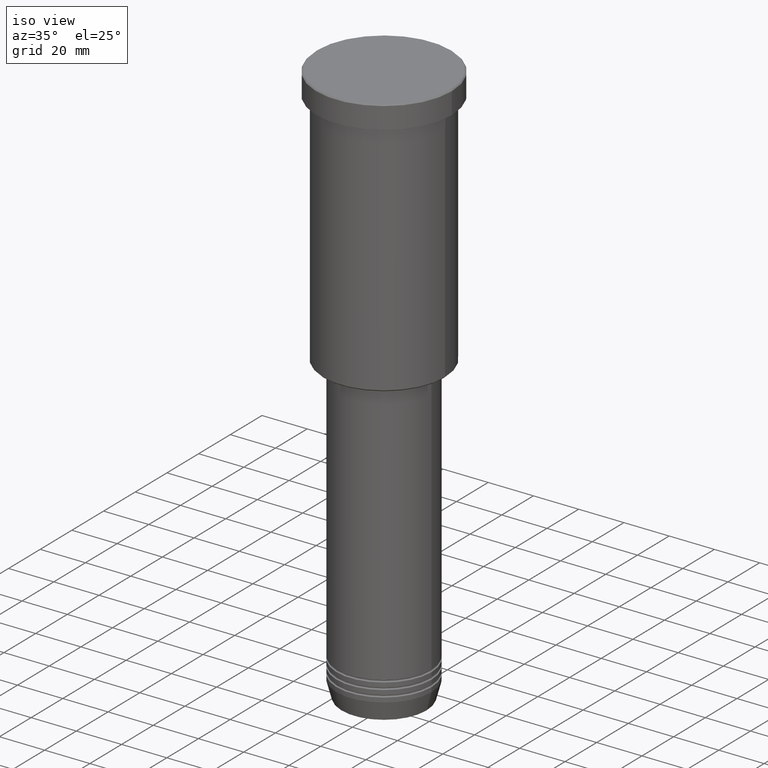
[diagram: clean part render]
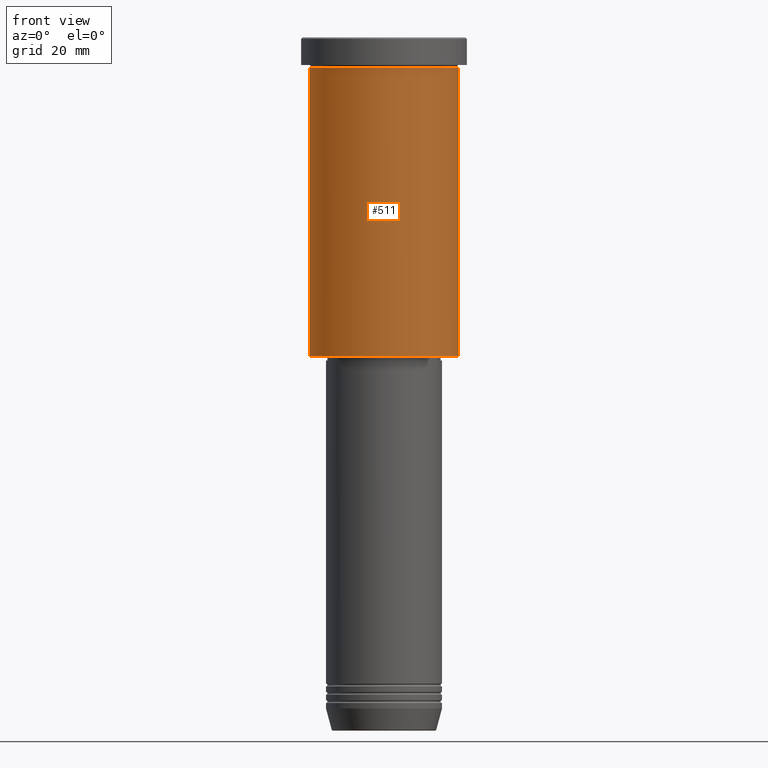
[diagram: tour spotlight — one face highlighted and labeled with its STEP entity id]
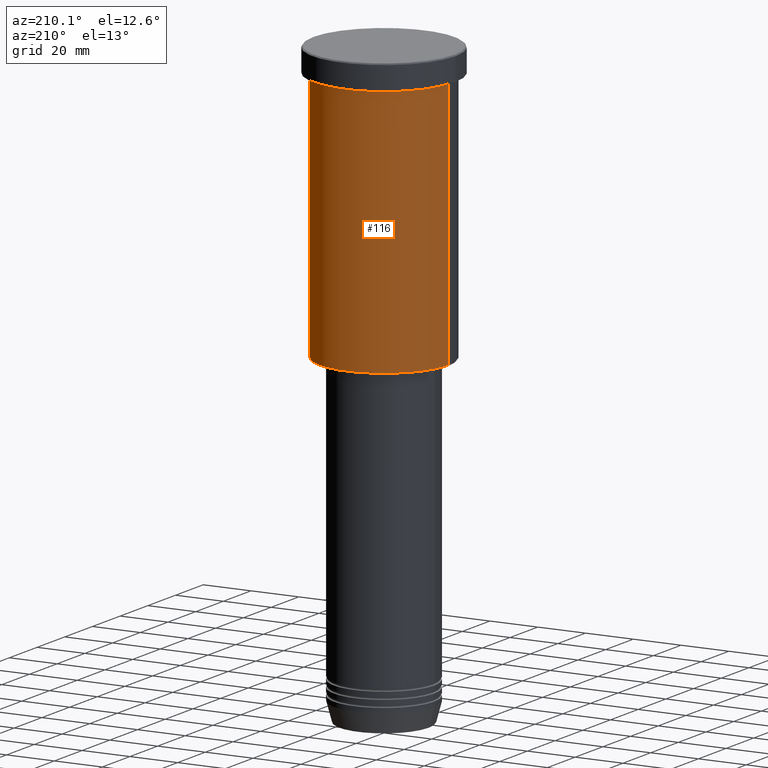
[diagram: tour spotlight — one face highlighted and labeled with its STEP entity id]
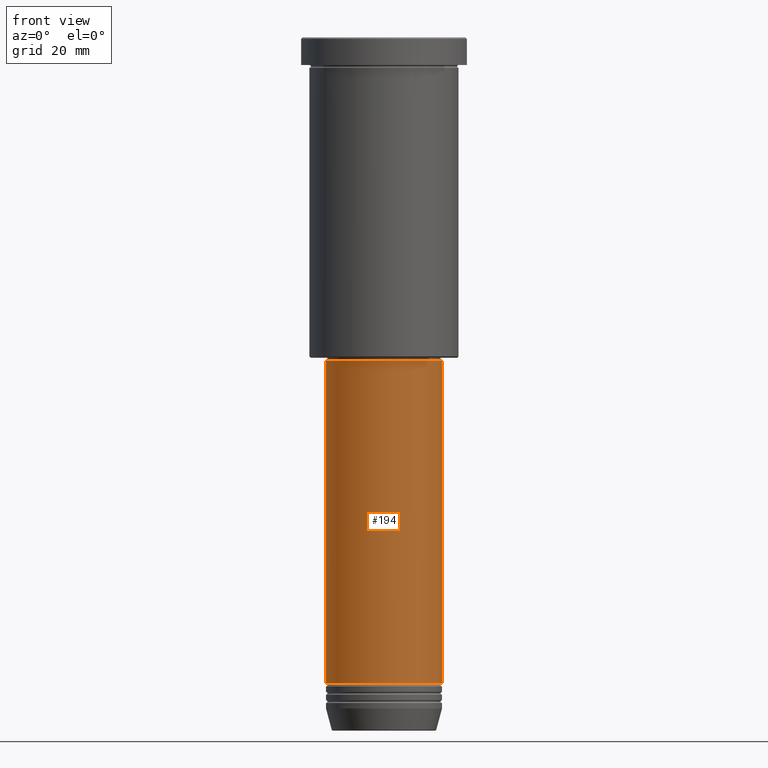
[diagram: tour spotlight — one face highlighted and labeled with its STEP entity id]
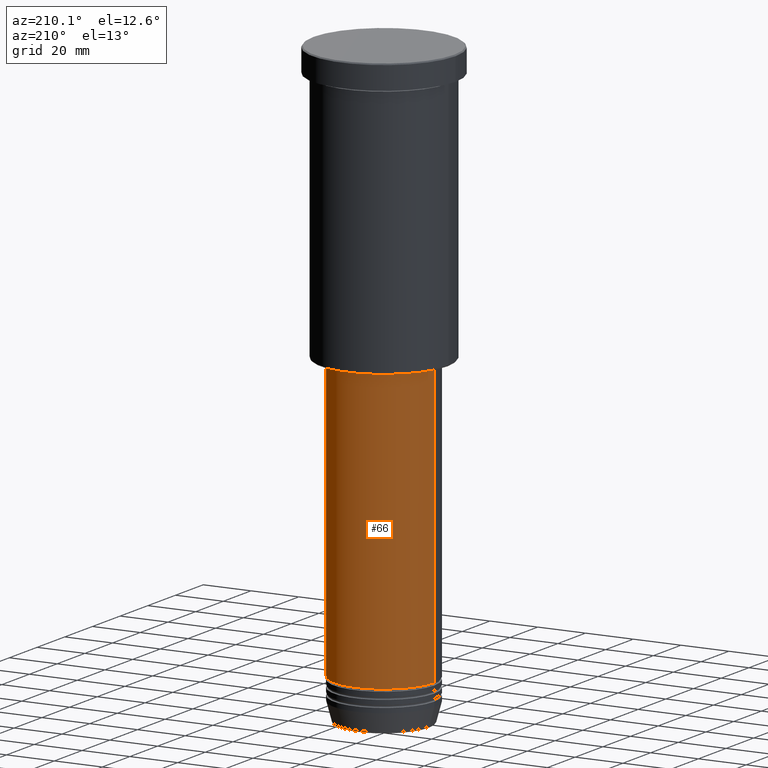
[diagram: tour spotlight — one face highlighted and labeled with its STEP entity id]
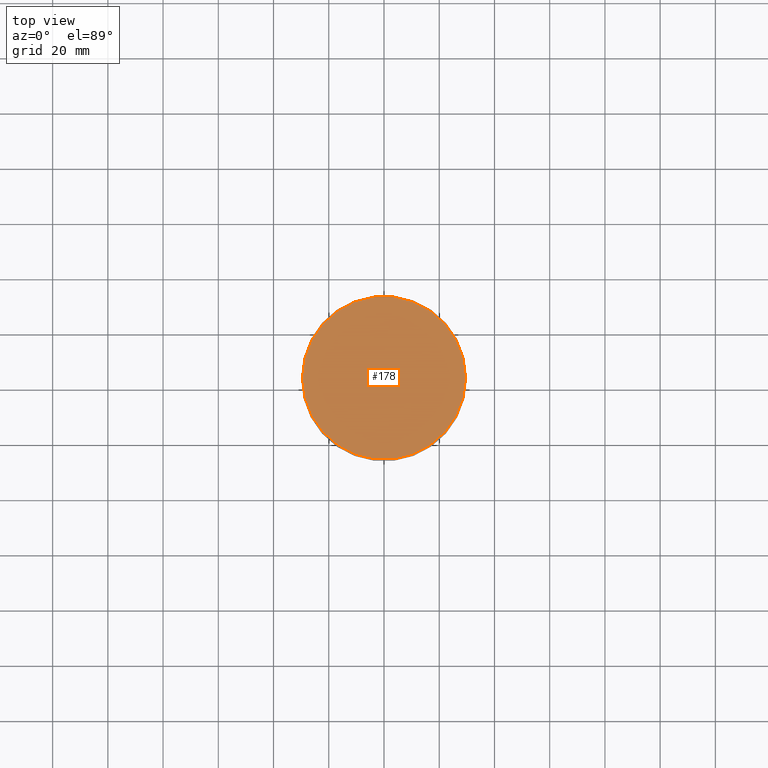
[diagram: tour spotlight — one face highlighted and labeled with its STEP entity id]
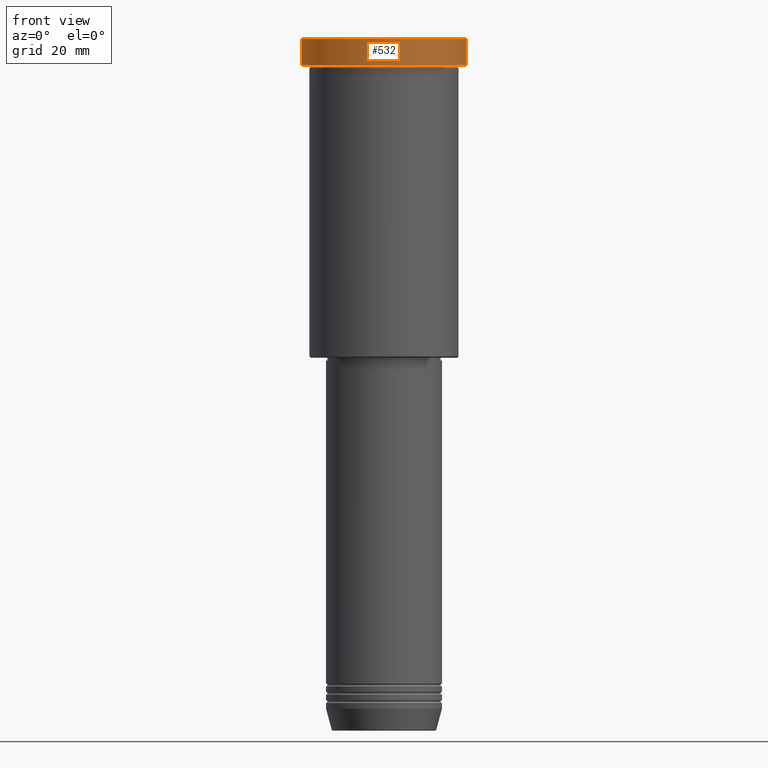
[diagram: tour spotlight — one face highlighted and labeled with its STEP entity id]
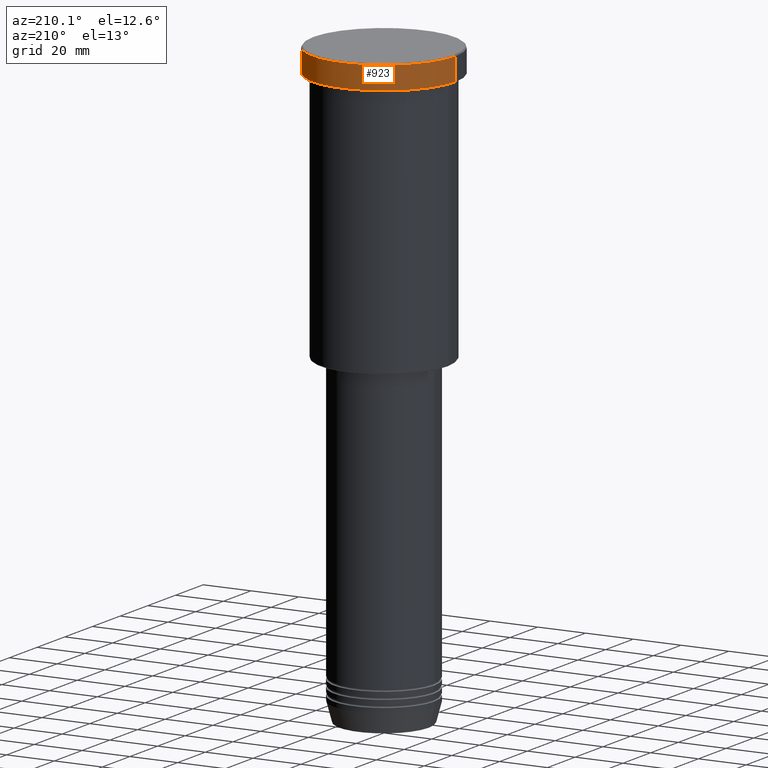
[diagram: tour spotlight — one face highlighted and labeled with its STEP entity id]
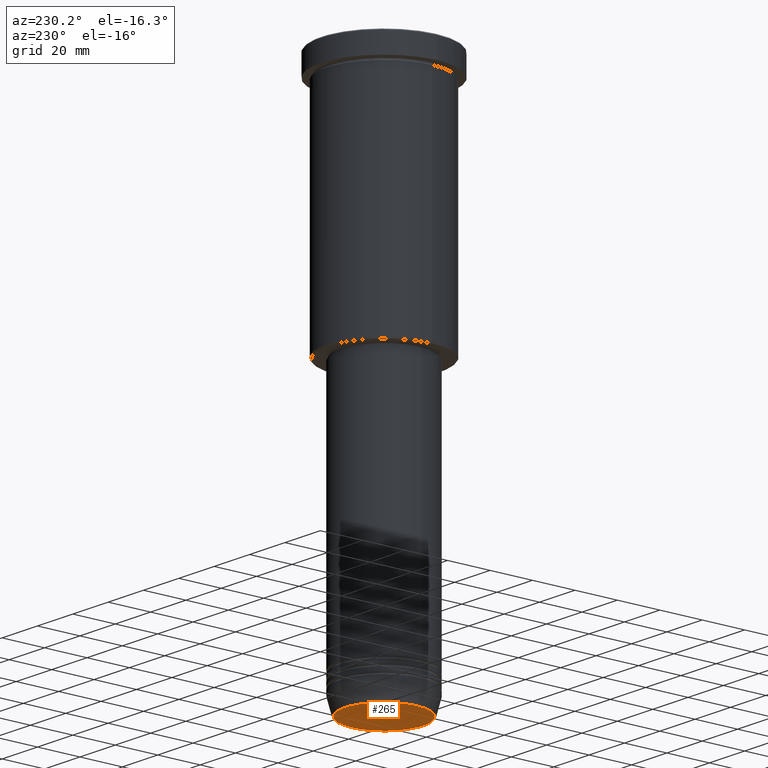
[diagram: tour spotlight — one face highlighted and labeled with its STEP entity id]
A machine part: a face-by-face anatomy tour. The part has 43 B-rep faces; the first image is the clean iso view, then the 8 largest visible faces are spotlighted one at a time (largest first), each with its STEP entity span.

Face 1 — front view, entity #511. In plain terms, the highlighted cylindrical surface (partial cylindrical patch) has radius 27 mm, axis along (-0, -0, 1).
Definition (entity closure, byte-faithful):
#19 = DIRECTION ( 'NONE',  ( 1.000000000000000000, 0.000000000000000000, 0.000000000000000000 ) ) ;
#52 = CARTESIAN_POINT ( 'NONE',  ( -27.00000000000000355, 3.306546357697854128E-15, 0.000000000000000000 ) ) ;
#70 = FACE_OUTER_BOUND ( 'NONE', #1083, .T. ) ;
#112 = CARTESIAN_POINT ( 'NONE',  ( 0.000000000000000000, 0.000000000000000000, -10.99999999999999289 ) ) ;
#117 = CARTESIAN_POINT ( 'NONE',  ( 27.00000000000000355, 0.000000000000000000, -10.99999999999999289 ) ) ;
#131 = ORIENTED_EDGE ( 'NONE', *, *, #740, .T. ) ;
#133 = VERTEX_POINT ( 'NONE', #371 ) ;
#148 = AXIS2_PLACEMENT_3D ( 'NONE', #988, #1071, #526 ) ;
#151 = CARTESIAN_POINT ( 'NONE',  ( 0.000000000000000000, 0.000000000000000000, -115.5000000000000142 ) ) ;
#203 = VECTOR ( 'NONE', #325, 1000.000000000000000 ) ;
#240 = EDGE_CURVE ( 'NONE', #427, #289, #900, .T. ) ;
#248 = DIRECTION ( 'NONE',  ( -0.000000000000000000, -0.000000000000000000, 1.000000000000000000 ) ) ;
#289 = VERTEX_POINT ( 'NONE', #117 ) ;
#314 = AXIS2_PLACEMENT_3D ( 'NONE', #112, #1042, #19 ) ;
#325 = DIRECTION ( 'NONE',  ( -0.000000000000000000, -0.000000000000000000, 1.000000000000000000 ) ) ;
#371 = CARTESIAN_POINT ( 'NONE',  ( -27.00000000000000355, 3.306546357697854128E-15, -115.5000000000000142 ) ) ;
#400 = EDGE_CURVE ( 'NONE', #133, #421, #1173, .T. ) ;
#421 = VERTEX_POINT ( 'NONE', #980 ) ;
#427 = VERTEX_POINT ( 'NONE', #521 ) ;
#485 = ORIENTED_EDGE ( 'NONE', *, *, #400, .T. ) ;
#487 = EDGE_CURVE ( 'NONE', #133, #427, #510, .T. ) ;
#510 = LINE ( 'NONE', #52, #745 ) ;
#511 = ADVANCED_FACE ( 'NONE', ( #70 ), #702, .T. ) ;
#521 = CARTESIAN_POINT ( 'NONE',  ( -27.00000000000000355, 3.306546357697854128E-15, -10.99999999999999289 ) ) ;
#526 = DIRECTION ( 'NONE',  ( 1.000000000000000000, 0.000000000000000000, 0.000000000000000000 ) ) ;
#622 = DIRECTION ( 'NONE',  ( -1.000000000000000000, 0.000000000000000000, 0.000000000000000000 ) ) ;
#694 = ORIENTED_EDGE ( 'NONE', *, *, #487, .F. ) ;
#702 = CYLINDRICAL_SURFACE ( 'NONE', #148, 27.00000000000000355 ) ;
#740 = EDGE_CURVE ( 'NONE', #421, #289, #979, .T. ) ;
#745 = VECTOR ( 'NONE', #248, 1000.000000000000000 ) ;
#794 = DIRECTION ( 'NONE',  ( -0.000000000000000000, -0.000000000000000000, 1.000000000000000000 ) ) ;
#873 = CARTESIAN_POINT ( 'NONE',  ( 27.00000000000000355, 0.000000000000000000, 0.000000000000000000 ) ) ;
#900 = CIRCLE ( 'NONE', #314, 27.00000000000000355 ) ;
#979 = LINE ( 'NONE', #873, #203 ) ;
#980 = CARTESIAN_POINT ( 'NONE',  ( 27.00000000000000355, 0.000000000000000000, -115.5000000000000142 ) ) ;
#988 = CARTESIAN_POINT ( 'NONE',  ( 0.000000000000000000, 0.000000000000000000, 0.000000000000000000 ) ) ;
#1042 = DIRECTION ( 'NONE',  ( -0.000000000000000000, -0.000000000000000000, 1.000000000000000000 ) ) ;
#1071 = DIRECTION ( 'NONE',  ( -0.000000000000000000, -0.000000000000000000, 1.000000000000000000 ) ) ;
#1077 = ORIENTED_EDGE ( 'NONE', *, *, #240, .F. ) ;
#1083 = EDGE_LOOP ( 'NONE', ( #694, #485, #131, #1077 ) ) ;
#1141 = AXIS2_PLACEMENT_3D ( 'NONE', #151, #794, #622 ) ;
#1173 = CIRCLE ( 'NONE', #1141, 27.00000000000000355 ) ;

Face 2 — auxiliary view, entity #116. In plain terms, the highlighted cylindrical surface (partial cylindrical patch) has radius 27 mm, axis along (-0, -0, 1).
Definition (entity closure, byte-faithful):
#52 = CARTESIAN_POINT ( 'NONE',  ( -27.00000000000000355, 3.306546357697854128E-15, 0.000000000000000000 ) ) ;
#77 = CARTESIAN_POINT ( 'NONE',  ( 0.000000000000000000, 0.000000000000000000, -115.5000000000000142 ) ) ;
#82 = CARTESIAN_POINT ( 'NONE',  ( 0.000000000000000000, 0.000000000000000000, 0.000000000000000000 ) ) ;
#116 = ADVANCED_FACE ( 'NONE', ( #175 ), #722, .T. ) ;
#117 = CARTESIAN_POINT ( 'NONE',  ( 27.00000000000000355, 0.000000000000000000, -10.99999999999999289 ) ) ;
#121 = CARTESIAN_POINT ( 'NONE',  ( 0.000000000000000000, 0.000000000000000000, -10.99999999999999289 ) ) ;
#133 = VERTEX_POINT ( 'NONE', #371 ) ;
#175 = FACE_OUTER_BOUND ( 'NONE', #932, .T. ) ;
#203 = VECTOR ( 'NONE', #325, 1000.000000000000000 ) ;
#248 = DIRECTION ( 'NONE',  ( -0.000000000000000000, -0.000000000000000000, 1.000000000000000000 ) ) ;
#289 = VERTEX_POINT ( 'NONE', #117 ) ;
#315 = AXIS2_PLACEMENT_3D ( 'NONE', #121, #1036, #454 ) ;
#325 = DIRECTION ( 'NONE',  ( -0.000000000000000000, -0.000000000000000000, 1.000000000000000000 ) ) ;
#336 = ORIENTED_EDGE ( 'NONE', *, *, #487, .T. ) ;
#371 = CARTESIAN_POINT ( 'NONE',  ( -27.00000000000000355, 3.306546357697854128E-15, -115.5000000000000142 ) ) ;
#386 = EDGE_CURVE ( 'NONE', #421, #133, #1105, .T. ) ;
#421 = VERTEX_POINT ( 'NONE', #980 ) ;
#427 = VERTEX_POINT ( 'NONE', #521 ) ;
#454 = DIRECTION ( 'NONE',  ( 1.000000000000000000, 0.000000000000000000, 0.000000000000000000 ) ) ;
#487 = EDGE_CURVE ( 'NONE', #133, #427, #510, .T. ) ;
#510 = LINE ( 'NONE', #52, #745 ) ;
#521 = CARTESIAN_POINT ( 'NONE',  ( -27.00000000000000355, 3.306546357697854128E-15, -10.99999999999999289 ) ) ;
#541 = EDGE_CURVE ( 'NONE', #289, #427, #628, .T. ) ;
#605 = ORIENTED_EDGE ( 'NONE', *, *, #541, .F. ) ;
#628 = CIRCLE ( 'NONE', #315, 27.00000000000000355 ) ;
#647 = DIRECTION ( 'NONE',  ( -0.000000000000000000, -0.000000000000000000, 1.000000000000000000 ) ) ;
#722 = CYLINDRICAL_SURFACE ( 'NONE', #989, 27.00000000000000355 ) ;
#740 = EDGE_CURVE ( 'NONE', #421, #289, #979, .T. ) ;
#745 = VECTOR ( 'NONE', #248, 1000.000000000000000 ) ;
#766 = ORIENTED_EDGE ( 'NONE', *, *, #740, .F. ) ;
#873 = CARTESIAN_POINT ( 'NONE',  ( 27.00000000000000355, 0.000000000000000000, 0.000000000000000000 ) ) ;
#897 = ORIENTED_EDGE ( 'NONE', *, *, #386, .T. ) ;
#907 = DIRECTION ( 'NONE',  ( -0.000000000000000000, -0.000000000000000000, 1.000000000000000000 ) ) ;
#932 = EDGE_LOOP ( 'NONE', ( #897, #336, #605, #766 ) ) ;
#936 = AXIS2_PLACEMENT_3D ( 'NONE', #77, #907, #1153 ) ;
#979 = LINE ( 'NONE', #873, #203 ) ;
#980 = CARTESIAN_POINT ( 'NONE',  ( 27.00000000000000355, 0.000000000000000000, -115.5000000000000142 ) ) ;
#989 = AXIS2_PLACEMENT_3D ( 'NONE', #82, #647, #1018 ) ;
#1018 = DIRECTION ( 'NONE',  ( 1.000000000000000000, 0.000000000000000000, 0.000000000000000000 ) ) ;
#1036 = DIRECTION ( 'NONE',  ( -0.000000000000000000, -0.000000000000000000, 1.000000000000000000 ) ) ;
#1105 = CIRCLE ( 'NONE', #936, 27.00000000000000355 ) ;
#1153 = DIRECTION ( 'NONE',  ( -1.000000000000000000, 0.000000000000000000, 0.000000000000000000 ) ) ;

Face 3 — front view, entity #194. In plain terms, the highlighted cylindrical surface (partial cylindrical patch) has radius 21 mm, axis along (-0, -0, 1).
Definition (entity closure, byte-faithful):
#21 = LINE ( 'NONE', #666, #789 ) ;
#32 = EDGE_CURVE ( 'NONE', #36, #665, #557, .T. ) ;
#36 = VERTEX_POINT ( 'NONE', #1159 ) ;
#62 = DIRECTION ( 'NONE',  ( 1.000000000000000000, 0.000000000000000000, 0.000000000000000000 ) ) ;
#157 = CARTESIAN_POINT ( 'NONE',  ( 0.000000000000000000, 0.000000000000000000, -234.0000000000000000 ) ) ;
#171 = AXIS2_PLACEMENT_3D ( 'NONE', #362, #640, #749 ) ;
#185 = CIRCLE ( 'NONE', #807, 21.00000000000000000 ) ;
#186 = AXIS2_PLACEMENT_3D ( 'NONE', #157, #353, #527 ) ;
#192 = ORIENTED_EDGE ( 'NONE', *, *, #912, .T. ) ;
#194 = ADVANCED_FACE ( 'NONE', ( #376 ), #931, .T. ) ;
#353 = DIRECTION ( 'NONE',  ( -0.000000000000000000, -0.000000000000000000, 1.000000000000000000 ) ) ;
#362 = CARTESIAN_POINT ( 'NONE',  ( 0.000000000000000000, 0.000000000000000000, 0.000000000000000000 ) ) ;
#376 = FACE_OUTER_BOUND ( 'NONE', #491, .T. ) ;
#469 = VECTOR ( 'NONE', #529, 1000.000000000000000 ) ;
#491 = EDGE_LOOP ( 'NONE', ( #818, #986, #192, #778 ) ) ;
#527 = DIRECTION ( 'NONE',  ( 1.000000000000000000, 0.000000000000000000, 0.000000000000000000 ) ) ;
#529 = DIRECTION ( 'NONE',  ( -0.000000000000000000, -0.000000000000000000, 1.000000000000000000 ) ) ;
#557 = CIRCLE ( 'NONE', #186, 21.00000000000000000 ) ;
#587 = CARTESIAN_POINT ( 'NONE',  ( 0.000000000000000000, 0.000000000000000000, -117.0000000000000142 ) ) ;
#640 = DIRECTION ( 'NONE',  ( -0.000000000000000000, -0.000000000000000000, 1.000000000000000000 ) ) ;
#665 = VERTEX_POINT ( 'NONE', #762 ) ;
#666 = CARTESIAN_POINT ( 'NONE',  ( -21.00000000000000000, 2.571758278209441661E-15, 0.000000000000000000 ) ) ;
#689 = DIRECTION ( 'NONE',  ( -0.000000000000000000, -0.000000000000000000, 1.000000000000000000 ) ) ;
#733 = EDGE_CURVE ( 'NONE', #795, #925, #185, .T. ) ;
#749 = DIRECTION ( 'NONE',  ( 1.000000000000000000, 0.000000000000000000, 0.000000000000000000 ) ) ;
#762 = CARTESIAN_POINT ( 'NONE',  ( 21.00000000000000000, 0.000000000000000000, -234.0000000000000000 ) ) ;
#778 = ORIENTED_EDGE ( 'NONE', *, *, #733, .F. ) ;
#789 = VECTOR ( 'NONE', #1035, 1000.000000000000000 ) ;
#795 = VERTEX_POINT ( 'NONE', #1134 ) ;
#807 = AXIS2_PLACEMENT_3D ( 'NONE', #587, #689, #62 ) ;
#818 = ORIENTED_EDGE ( 'NONE', *, *, #1079, .F. ) ;
#911 = LINE ( 'NONE', #1003, #469 ) ;
#912 = EDGE_CURVE ( 'NONE', #665, #925, #911, .T. ) ;
#916 = CARTESIAN_POINT ( 'NONE',  ( 21.00000000000000000, 0.000000000000000000, -117.0000000000000142 ) ) ;
#925 = VERTEX_POINT ( 'NONE', #916 ) ;
#931 = CYLINDRICAL_SURFACE ( 'NONE', #171, 21.00000000000000000 ) ;
#986 = ORIENTED_EDGE ( 'NONE', *, *, #32, .T. ) ;
#1003 = CARTESIAN_POINT ( 'NONE',  ( 21.00000000000000000, 0.000000000000000000, 0.000000000000000000 ) ) ;
#1035 = DIRECTION ( 'NONE',  ( -0.000000000000000000, -0.000000000000000000, 1.000000000000000000 ) ) ;
#1079 = EDGE_CURVE ( 'NONE', #36, #795, #21, .T. ) ;
#1134 = CARTESIAN_POINT ( 'NONE',  ( -21.00000000000000000, 2.571758278209441661E-15, -117.0000000000000142 ) ) ;
#1159 = CARTESIAN_POINT ( 'NONE',  ( -21.00000000000000000, 2.571758278209441661E-15, -234.0000000000000000 ) ) ;

Face 4 — auxiliary view, entity #66. In plain terms, the highlighted cylindrical surface (partial cylindrical patch) has radius 21 mm, axis along (-0, -0, 1).
Definition (entity closure, byte-faithful):
#21 = LINE ( 'NONE', #666, #789 ) ;
#36 = VERTEX_POINT ( 'NONE', #1159 ) ;
#66 = ADVANCED_FACE ( 'NONE', ( #449 ), #714, .T. ) ;
#76 = DIRECTION ( 'NONE',  ( 1.000000000000000000, 0.000000000000000000, 0.000000000000000000 ) ) ;
#160 = DIRECTION ( 'NONE',  ( 1.000000000000000000, 0.000000000000000000, 0.000000000000000000 ) ) ;
#293 = CIRCLE ( 'NONE', #825, 21.00000000000000000 ) ;
#422 = CARTESIAN_POINT ( 'NONE',  ( 0.000000000000000000, 0.000000000000000000, -117.0000000000000142 ) ) ;
#428 = DIRECTION ( 'NONE',  ( -0.000000000000000000, -0.000000000000000000, 1.000000000000000000 ) ) ;
#435 = CIRCLE ( 'NONE', #903, 21.00000000000000000 ) ;
#449 = FACE_OUTER_BOUND ( 'NONE', #971, .T. ) ;
#461 = EDGE_CURVE ( 'NONE', #665, #36, #293, .T. ) ;
#469 = VECTOR ( 'NONE', #529, 1000.000000000000000 ) ;
#507 = ORIENTED_EDGE ( 'NONE', *, *, #1079, .T. ) ;
#522 = DIRECTION ( 'NONE',  ( 1.000000000000000000, 0.000000000000000000, 0.000000000000000000 ) ) ;
#529 = DIRECTION ( 'NONE',  ( -0.000000000000000000, -0.000000000000000000, 1.000000000000000000 ) ) ;
#574 = ORIENTED_EDGE ( 'NONE', *, *, #820, .F. ) ;
#665 = VERTEX_POINT ( 'NONE', #762 ) ;
#666 = CARTESIAN_POINT ( 'NONE',  ( -21.00000000000000000, 2.571758278209441661E-15, 0.000000000000000000 ) ) ;
#714 = CYLINDRICAL_SURFACE ( 'NONE', #788, 21.00000000000000000 ) ;
#762 = CARTESIAN_POINT ( 'NONE',  ( 21.00000000000000000, 0.000000000000000000, -234.0000000000000000 ) ) ;
#788 = AXIS2_PLACEMENT_3D ( 'NONE', #890, #914, #522 ) ;
#789 = VECTOR ( 'NONE', #1035, 1000.000000000000000 ) ;
#795 = VERTEX_POINT ( 'NONE', #1134 ) ;
#820 = EDGE_CURVE ( 'NONE', #925, #795, #435, .T. ) ;
#825 = AXIS2_PLACEMENT_3D ( 'NONE', #1168, #1075, #160 ) ;
#890 = CARTESIAN_POINT ( 'NONE',  ( 0.000000000000000000, 0.000000000000000000, 0.000000000000000000 ) ) ;
#903 = AXIS2_PLACEMENT_3D ( 'NONE', #422, #428, #76 ) ;
#911 = LINE ( 'NONE', #1003, #469 ) ;
#912 = EDGE_CURVE ( 'NONE', #665, #925, #911, .T. ) ;
#914 = DIRECTION ( 'NONE',  ( -0.000000000000000000, -0.000000000000000000, 1.000000000000000000 ) ) ;
#916 = CARTESIAN_POINT ( 'NONE',  ( 21.00000000000000000, 0.000000000000000000, -117.0000000000000142 ) ) ;
#925 = VERTEX_POINT ( 'NONE', #916 ) ;
#971 = EDGE_LOOP ( 'NONE', ( #1015, #507, #574, #1129 ) ) ;
#1003 = CARTESIAN_POINT ( 'NONE',  ( 21.00000000000000000, 0.000000000000000000, 0.000000000000000000 ) ) ;
#1015 = ORIENTED_EDGE ( 'NONE', *, *, #461, .T. ) ;
#1035 = DIRECTION ( 'NONE',  ( -0.000000000000000000, -0.000000000000000000, 1.000000000000000000 ) ) ;
#1075 = DIRECTION ( 'NONE',  ( -0.000000000000000000, -0.000000000000000000, 1.000000000000000000 ) ) ;
#1079 = EDGE_CURVE ( 'NONE', #36, #795, #21, .T. ) ;
#1129 = ORIENTED_EDGE ( 'NONE', *, *, #912, .F. ) ;
#1134 = CARTESIAN_POINT ( 'NONE',  ( -21.00000000000000000, 2.571758278209441661E-15, -117.0000000000000142 ) ) ;
#1159 = CARTESIAN_POINT ( 'NONE',  ( -21.00000000000000000, 2.571758278209441661E-15, -234.0000000000000000 ) ) ;
#1168 = CARTESIAN_POINT ( 'NONE',  ( 0.000000000000000000, 0.000000000000000000, -234.0000000000000000 ) ) ;

Face 5 — top view, entity #178. In plain terms, the highlighted planar face has unit normal (0, -0, 1).
Definition (entity closure, byte-faithful):
#58 = DIRECTION ( 'NONE',  ( -0.000000000000000000, -0.000000000000000000, 1.000000000000000000 ) ) ;
#59 = DIRECTION ( 'NONE',  ( 1.000000000000000000, 0.000000000000000000, 0.000000000000000000 ) ) ;
#64 = CARTESIAN_POINT ( 'NONE',  ( 0.000000000000000000, 0.000000000000000000, 0.000000000000000000 ) ) ;
#69 = EDGE_CURVE ( 'NONE', #915, #1006, #727, .T. ) ;
#178 = ADVANCED_FACE ( 'NONE', ( #919 ), #1174, .T. ) ;
#232 = EDGE_LOOP ( 'NONE', ( #641, #246 ) ) ;
#237 = CARTESIAN_POINT ( 'NONE',  ( 0.000000000000000000, 0.000000000000000000, 0.000000000000000000 ) ) ;
#246 = ORIENTED_EDGE ( 'NONE', *, *, #370, .T. ) ;
#348 = DIRECTION ( 'NONE',  ( -0.000000000000000000, -0.000000000000000000, 1.000000000000000000 ) ) ;
#370 = EDGE_CURVE ( 'NONE', #1006, #915, #514, .T. ) ;
#460 = CARTESIAN_POINT ( 'NONE',  ( 0.000000000000000000, 0.000000000000000000, 0.000000000000000000 ) ) ;
#514 = CIRCLE ( 'NONE', #725, 29.50000000000000000 ) ;
#612 = DIRECTION ( 'NONE',  ( 1.000000000000000000, 0.000000000000000000, 0.000000000000000000 ) ) ;
#641 = ORIENTED_EDGE ( 'NONE', *, *, #69, .T. ) ;
#725 = AXIS2_PLACEMENT_3D ( 'NONE', #64, #58, #612 ) ;
#727 = CIRCLE ( 'NONE', #1092, 29.50000000000000000 ) ;
#743 = AXIS2_PLACEMENT_3D ( 'NONE', #460, #1180, #1113 ) ;
#905 = CARTESIAN_POINT ( 'NONE',  ( 29.50000000000000000, 3.643324227463375391E-15, 0.000000000000000000 ) ) ;
#915 = VERTEX_POINT ( 'NONE', #1171 ) ;
#919 = FACE_OUTER_BOUND ( 'NONE', #232, .T. ) ;
#1006 = VERTEX_POINT ( 'NONE', #905 ) ;
#1092 = AXIS2_PLACEMENT_3D ( 'NONE', #237, #348, #59 ) ;
#1113 = DIRECTION ( 'NONE',  ( 1.000000000000000000, 0.000000000000000000, 0.000000000000000000 ) ) ;
#1171 = CARTESIAN_POINT ( 'NONE',  ( -29.50000000000000000, 0.000000000000000000, 0.000000000000000000 ) ) ;
#1174 = PLANE ( 'NONE',  #743 ) ;
#1180 = DIRECTION ( 'NONE',  ( 0.000000000000000000, -0.000000000000000000, 1.000000000000000000 ) ) ;

Face 6 — front view, entity #532. In plain terms, the highlighted cylindrical surface (partial cylindrical patch) has radius 30 mm, axis along (-0, -0, 1).
Definition (entity closure, byte-faithful):
#5 = VECTOR ( 'NONE', #551, 1000.000000000000000 ) ;
#17 = CARTESIAN_POINT ( 'NONE',  ( 30.00000000000000000, 0.000000000000000000, -0.5000000000000073275 ) ) ;
#26 = CIRCLE ( 'NONE', #534, 30.00000000000000000 ) ;
#28 = DIRECTION ( 'NONE',  ( 0.000000000000000000, 0.000000000000000000, -1.000000000000000000 ) ) ;
#97 = VERTEX_POINT ( 'NONE', #719 ) ;
#126 = ORIENTED_EDGE ( 'NONE', *, *, #476, .T. ) ;
#154 = CARTESIAN_POINT ( 'NONE',  ( 30.00000000000000000, 0.000000000000000000, -9.999999999999992895 ) ) ;
#198 = CARTESIAN_POINT ( 'NONE',  ( 0.000000000000000000, 0.000000000000000000, 0.000000000000000000 ) ) ;
#216 = ORIENTED_EDGE ( 'NONE', *, *, #650, .T. ) ;
#226 = EDGE_CURVE ( 'NONE', #785, #1103, #833, .T. ) ;
#241 = CIRCLE ( 'NONE', #555, 30.00000000000000000 ) ;
#267 = LINE ( 'NONE', #996, #884 ) ;
#273 = CARTESIAN_POINT ( 'NONE',  ( 30.00000000000000000, 0.000000000000000000, 0.000000000000000000 ) ) ;
#299 = CYLINDRICAL_SURFACE ( 'NONE', #1157, 30.00000000000000000 ) ;
#352 = DIRECTION ( 'NONE',  ( 1.000000000000000000, 0.000000000000000000, 0.000000000000000000 ) ) ;
#372 = ORIENTED_EDGE ( 'NONE', *, *, #945, .F. ) ;
#476 = EDGE_CURVE ( 'NONE', #737, #785, #26, .T. ) ;
#532 = ADVANCED_FACE ( 'NONE', ( #949 ), #299, .T. ) ;
#534 = AXIS2_PLACEMENT_3D ( 'NONE', #696, #1085, #352 ) ;
#543 = DIRECTION ( 'NONE',  ( -0.000000000000000000, -0.000000000000000000, 1.000000000000000000 ) ) ;
#544 = DIRECTION ( 'NONE',  ( 1.000000000000000000, 0.000000000000000000, 0.000000000000000000 ) ) ;
#546 = EDGE_LOOP ( 'NONE', ( #372, #126, #976, #216 ) ) ;
#551 = DIRECTION ( 'NONE',  ( -0.000000000000000000, -0.000000000000000000, 1.000000000000000000 ) ) ;
#555 = AXIS2_PLACEMENT_3D ( 'NONE', #1172, #28, #769 ) ;
#650 = EDGE_CURVE ( 'NONE', #1103, #97, #241, .T. ) ;
#696 = CARTESIAN_POINT ( 'NONE',  ( 0.000000000000000000, 0.000000000000000000, -9.999999999999992895 ) ) ;
#719 = CARTESIAN_POINT ( 'NONE',  ( -30.00000000000000000, 3.673940397442059178E-15, -0.5000000000000073275 ) ) ;
#737 = VERTEX_POINT ( 'NONE', #798 ) ;
#769 = DIRECTION ( 'NONE',  ( 1.000000000000000000, 0.000000000000000000, 0.000000000000000000 ) ) ;
#785 = VERTEX_POINT ( 'NONE', #154 ) ;
#798 = CARTESIAN_POINT ( 'NONE',  ( -30.00000000000000000, 3.673940397442059178E-15, -9.999999999999992895 ) ) ;
#833 = LINE ( 'NONE', #273, #5 ) ;
#884 = VECTOR ( 'NONE', #543, 1000.000000000000000 ) ;
#945 = EDGE_CURVE ( 'NONE', #737, #97, #267, .T. ) ;
#949 = FACE_OUTER_BOUND ( 'NONE', #546, .T. ) ;
#976 = ORIENTED_EDGE ( 'NONE', *, *, #226, .T. ) ;
#996 = CARTESIAN_POINT ( 'NONE',  ( -30.00000000000000000, 3.673940397442059178E-15, 0.000000000000000000 ) ) ;
#1029 = DIRECTION ( 'NONE',  ( -0.000000000000000000, -0.000000000000000000, 1.000000000000000000 ) ) ;
#1085 = DIRECTION ( 'NONE',  ( -0.000000000000000000, -0.000000000000000000, 1.000000000000000000 ) ) ;
#1103 = VERTEX_POINT ( 'NONE', #17 ) ;
#1157 = AXIS2_PLACEMENT_3D ( 'NONE', #198, #1029, #544 ) ;
#1172 = CARTESIAN_POINT ( 'NONE',  ( 0.000000000000000000, 0.000000000000000000, -0.5000000000000073275 ) ) ;

Face 7 — auxiliary view, entity #923. In plain terms, the highlighted cylindrical surface (partial cylindrical patch) has radius 30 mm, axis along (-0, -0, 1).
Definition (entity closure, byte-faithful):
#5 = VECTOR ( 'NONE', #551, 1000.000000000000000 ) ;
#17 = CARTESIAN_POINT ( 'NONE',  ( 30.00000000000000000, 0.000000000000000000, -0.5000000000000073275 ) ) ;
#97 = VERTEX_POINT ( 'NONE', #719 ) ;
#127 = DIRECTION ( 'NONE',  ( -0.000000000000000000, -0.000000000000000000, 1.000000000000000000 ) ) ;
#154 = CARTESIAN_POINT ( 'NONE',  ( 30.00000000000000000, 0.000000000000000000, -9.999999999999992895 ) ) ;
#159 = DIRECTION ( 'NONE',  ( 0.000000000000000000, 0.000000000000000000, -1.000000000000000000 ) ) ;
#226 = EDGE_CURVE ( 'NONE', #785, #1103, #833, .T. ) ;
#267 = LINE ( 'NONE', #996, #884 ) ;
#272 = CARTESIAN_POINT ( 'NONE',  ( 0.000000000000000000, 0.000000000000000000, -0.5000000000000073275 ) ) ;
#273 = CARTESIAN_POINT ( 'NONE',  ( 30.00000000000000000, 0.000000000000000000, 0.000000000000000000 ) ) ;
#337 = DIRECTION ( 'NONE',  ( 1.000000000000000000, 0.000000000000000000, 0.000000000000000000 ) ) ;
#339 = CIRCLE ( 'NONE', #707, 30.00000000000000000 ) ;
#365 = FACE_OUTER_BOUND ( 'NONE', #504, .T. ) ;
#399 = ORIENTED_EDGE ( 'NONE', *, *, #945, .T. ) ;
#432 = ORIENTED_EDGE ( 'NONE', *, *, #893, .T. ) ;
#504 = EDGE_LOOP ( 'NONE', ( #1055, #399, #432, #805 ) ) ;
#543 = DIRECTION ( 'NONE',  ( -0.000000000000000000, -0.000000000000000000, 1.000000000000000000 ) ) ;
#551 = DIRECTION ( 'NONE',  ( -0.000000000000000000, -0.000000000000000000, 1.000000000000000000 ) ) ;
#626 = CARTESIAN_POINT ( 'NONE',  ( 0.000000000000000000, 0.000000000000000000, 0.000000000000000000 ) ) ;
#629 = AXIS2_PLACEMENT_3D ( 'NONE', #626, #716, #1074 ) ;
#695 = CARTESIAN_POINT ( 'NONE',  ( 0.000000000000000000, 0.000000000000000000, -9.999999999999992895 ) ) ;
#698 = EDGE_CURVE ( 'NONE', #785, #737, #1072, .T. ) ;
#707 = AXIS2_PLACEMENT_3D ( 'NONE', #272, #159, #999 ) ;
#716 = DIRECTION ( 'NONE',  ( -0.000000000000000000, -0.000000000000000000, 1.000000000000000000 ) ) ;
#719 = CARTESIAN_POINT ( 'NONE',  ( -30.00000000000000000, 3.673940397442059178E-15, -0.5000000000000073275 ) ) ;
#737 = VERTEX_POINT ( 'NONE', #798 ) ;
#785 = VERTEX_POINT ( 'NONE', #154 ) ;
#798 = CARTESIAN_POINT ( 'NONE',  ( -30.00000000000000000, 3.673940397442059178E-15, -9.999999999999992895 ) ) ;
#805 = ORIENTED_EDGE ( 'NONE', *, *, #226, .F. ) ;
#831 = CYLINDRICAL_SURFACE ( 'NONE', #629, 30.00000000000000000 ) ;
#833 = LINE ( 'NONE', #273, #5 ) ;
#884 = VECTOR ( 'NONE', #543, 1000.000000000000000 ) ;
#893 = EDGE_CURVE ( 'NONE', #97, #1103, #339, .T. ) ;
#923 = ADVANCED_FACE ( 'NONE', ( #365 ), #831, .T. ) ;
#945 = EDGE_CURVE ( 'NONE', #737, #97, #267, .T. ) ;
#996 = CARTESIAN_POINT ( 'NONE',  ( -30.00000000000000000, 3.673940397442059178E-15, 0.000000000000000000 ) ) ;
#999 = DIRECTION ( 'NONE',  ( 1.000000000000000000, 0.000000000000000000, 0.000000000000000000 ) ) ;
#1055 = ORIENTED_EDGE ( 'NONE', *, *, #698, .T. ) ;
#1072 = CIRCLE ( 'NONE', #1142, 30.00000000000000000 ) ;
#1074 = DIRECTION ( 'NONE',  ( 1.000000000000000000, 0.000000000000000000, 0.000000000000000000 ) ) ;
#1103 = VERTEX_POINT ( 'NONE', #17 ) ;
#1142 = AXIS2_PLACEMENT_3D ( 'NONE', #695, #127, #337 ) ;

Face 8 — auxiliary view, entity #265. In plain terms, the highlighted planar face has unit normal (0, -0, 1).
Definition (entity closure, byte-faithful):
#40 = VERTEX_POINT ( 'NONE', #343 ) ;
#122 = EDGE_CURVE ( 'NONE', #40, #755, #958, .T. ) ;
#142 = CARTESIAN_POINT ( 'NONE',  ( 0.000000000000000000, 0.000000000000000000, -251.0000000000000000 ) ) ;
#163 = ORIENTED_EDGE ( 'NONE', *, *, #122, .T. ) ;
#180 = DIRECTION ( 'NONE',  ( 0.000000000000000000, 0.000000000000000000, -1.000000000000000000 ) ) ;
#265 = ADVANCED_FACE ( 'NONE', ( #963 ), #950, .F. ) ;
#343 = CARTESIAN_POINT ( 'NONE',  ( -18.47274296656154391, 2.291831503831604046E-15, -251.0000000000000000 ) ) ;
#383 = EDGE_LOOP ( 'NONE', ( #688, #163 ) ) ;
#394 = AXIS2_PLACEMENT_3D ( 'NONE', #1167, #921, #638 ) ;
#610 = CARTESIAN_POINT ( 'NONE',  ( 18.47274296656154391, 0.000000000000000000, -251.0000000000000000 ) ) ;
#637 = CARTESIAN_POINT ( 'NONE',  ( 0.000000000000000000, 0.000000000000000000, -251.0000000000000000 ) ) ;
#638 = DIRECTION ( 'NONE',  ( 1.000000000000000000, 0.000000000000000000, 0.000000000000000000 ) ) ;
#646 = AXIS2_PLACEMENT_3D ( 'NONE', #637, #180, #651 ) ;
#651 = DIRECTION ( 'NONE',  ( 1.000000000000000000, 0.000000000000000000, 0.000000000000000000 ) ) ;
#688 = ORIENTED_EDGE ( 'NONE', *, *, #871, .T. ) ;
#748 = AXIS2_PLACEMENT_3D ( 'NONE', #142, #874, #956 ) ;
#755 = VERTEX_POINT ( 'NONE', #610 ) ;
#871 = EDGE_CURVE ( 'NONE', #755, #40, #1175, .T. ) ;
#874 = DIRECTION ( 'NONE',  ( 0.000000000000000000, -0.000000000000000000, 1.000000000000000000 ) ) ;
#921 = DIRECTION ( 'NONE',  ( 0.000000000000000000, 0.000000000000000000, -1.000000000000000000 ) ) ;
#950 = PLANE ( 'NONE',  #748 ) ;
#956 = DIRECTION ( 'NONE',  ( 1.000000000000000000, 0.000000000000000000, 0.000000000000000000 ) ) ;
#958 = CIRCLE ( 'NONE', #646, 18.47274296656154391 ) ;
#963 = FACE_OUTER_BOUND ( 'NONE', #383, .T. ) ;
#1167 = CARTESIAN_POINT ( 'NONE',  ( 0.000000000000000000, 0.000000000000000000, -251.0000000000000000 ) ) ;
#1175 = CIRCLE ( 'NONE', #394, 18.47274296656154391 ) ;